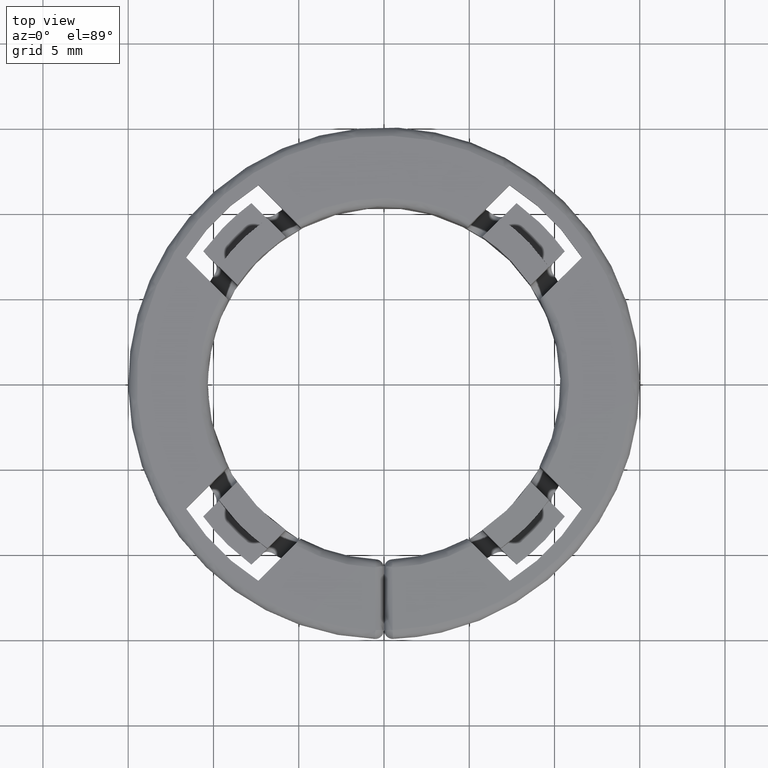
[diagram: clean part render]
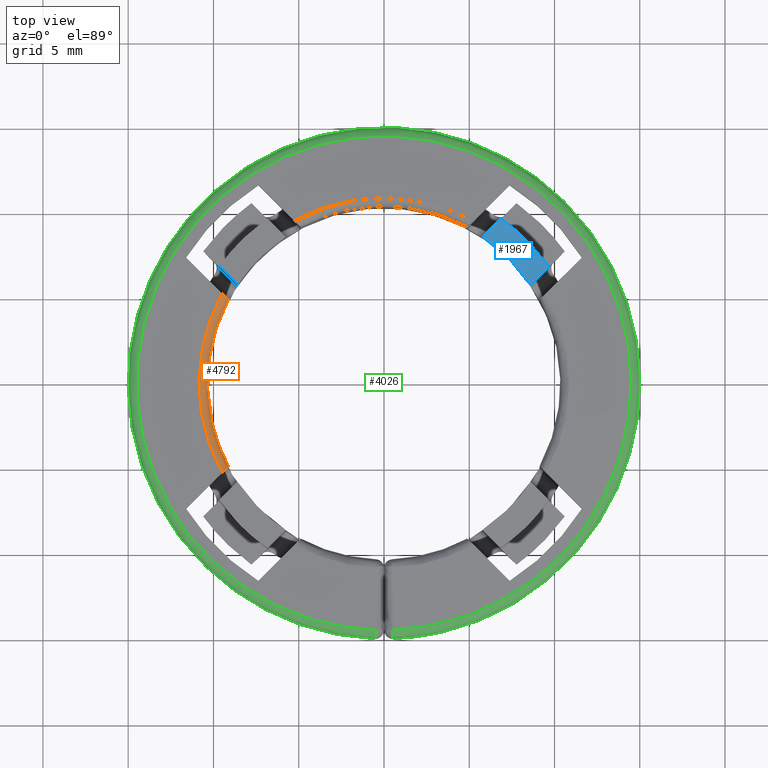
[diagram: same view with three faces highlighted in distinct colors, each labeled with its STEP entity id]
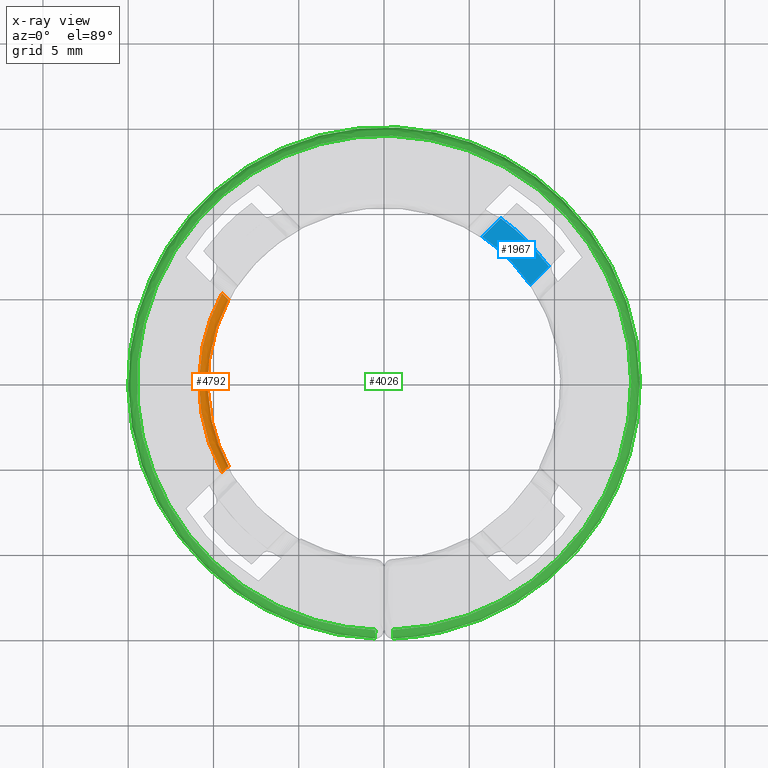
[diagram: x-ray of the same camera — body ghosted, the three highlighted faces saturated]
A machine part, top view with three faces highlighted in distinct colors.
The next image is the same camera in x-ray (body ghosted, the three faces saturated) — at least one of them is partly hidden behind the body in this view.
Their STEP definitions:

[orange] entity #4792 — the highlighted face is a freeform B-spline surface patch.
#1041=CARTESIAN_POINT('',(-9.125693977226019,4.883053290106700,5.999999999999890));
#1042=VERTEX_POINT('',#1041);
#1070=CARTESIAN_POINT('',(-9.494328549170220,5.251687862050890,6.500000000000000));
#1071=VERTEX_POINT('',#1070);
#1077=CARTESIAN_POINT('',(-9.125693977226028,4.883053290106715,5.999999999999887));
#1078=CARTESIAN_POINT('',(-9.125693977226026,4.883053290106715,6.033752963153897));
#1079=CARTESIAN_POINT('',(-9.128193237254189,4.885552550134879,6.066899596129286));
#1080=CARTESIAN_POINT('',(-9.137961227634385,4.895320540515074,6.132035770076508));
#1081=CARTESIAN_POINT('',(-9.145364351381973,4.902723664262662,6.164374184655222));
#1082=CARTESIAN_POINT('',(-9.164478044468808,4.921837357349496,6.225500382039145));
#1083=CARTESIAN_POINT('',(-9.176141815776122,4.933501128656807,6.254413710633630));
#1084=CARTESIAN_POINT('',(-9.196749602473103,4.954108915353785,6.295346835030607));
#1085=CARTESIAN_POINT('',(-9.204178845475632,4.961538158356318,6.308632579940622));
#1086=CARTESIAN_POINT('',(-9.219783511263955,4.977142824144643,6.333849574005575));
#1087=CARTESIAN_POINT('',(-9.227982877346719,4.985342190227405,6.345840490278778));
#1088=CARTESIAN_POINT('',(-9.253734842209372,5.011094155090057,6.380018412267149));
#1089=CARTESIAN_POINT('',(-9.272527133332154,5.029886446212839,6.400511723870603));
#1090=CARTESIAN_POINT('',(-9.312824353397463,5.070183666278146,6.436269984214948));
#1091=CARTESIAN_POINT('',(-9.333892925819102,5.091252238699786,6.451185906686304));
#1092=CARTESIAN_POINT('',(-9.377784206318259,5.135143519198939,6.475367663814558));
#1093=CARTESIAN_POINT('',(-9.400853066634964,5.158212379515645,6.484673399277100));
#1094=CARTESIAN_POINT('',(-9.447310462598381,5.204669775479057,6.496941569849708));
#1095=CARTESIAN_POINT('',(-9.470726407002953,5.228085719883628,6.499999999999899));
#1096=CARTESIAN_POINT('',(-9.494328549170220,5.251687862050890,6.500000000000000));
#1097=B_SPLINE_CURVE_WITH_KNOTS('',3,(#1077,#1078,#1079,#1080,#1081,#1082,#1083,#1084,#1085,#1086,#1087,#1088,#1089,#1090,#1091,#1092,#1093,#1094,#1095,#1096),.UNSPECIFIED.,.F.,.U.,(4,2,2,2,2,2,2,2,2,4),(0.0,0.125000000000003,0.250000000000005,0.375000000000007,0.437500000000008,0.500000000000009,0.625000000000006,0.750000000000004,0.875000000000002,1.0),.UNSPECIFIED.);
#1098=EDGE_CURVE('',#1042,#1071,#1097,.T.);
#1282=CARTESIAN_POINT('',(-9.125693977225998,-4.883053290106460,5.999999999999890));
#1283=VERTEX_POINT('',#1282);
#1289=CARTESIAN_POINT('',(-9.494328549170199,-5.251687862050639,6.500000000000000));
#1290=VERTEX_POINT('',#1289);
#1291=CARTESIAN_POINT('',(-9.125693977226010,-4.883053290106461,5.999999999999888));
#1292=CARTESIAN_POINT('',(-9.125693977226010,-4.883053290106460,6.033752963153897));
#1293=CARTESIAN_POINT('',(-9.128193237254171,-4.885552550134625,6.066899596129288));
#1294=CARTESIAN_POINT('',(-9.137961227634373,-4.895320540514822,6.132035770076510));
#1295=CARTESIAN_POINT('',(-9.145364351381955,-4.902723664262405,6.164374184655223));
#1296=CARTESIAN_POINT('',(-9.164478044468794,-4.921837357349242,6.225500382039148));
#1297=CARTESIAN_POINT('',(-9.176141815776107,-4.933501128656553,6.254413710633630));
#1298=CARTESIAN_POINT('',(-9.196749602473087,-4.954108915353532,6.295346835030606));
#1299=CARTESIAN_POINT('',(-9.204178845475619,-4.961538158356064,6.308632579940629));
#1300=CARTESIAN_POINT('',(-9.219783511263941,-4.977142824144386,6.333849574005576));
#1301=CARTESIAN_POINT('',(-9.227982877346703,-4.985342190227149,6.345840490278777));
#1302=CARTESIAN_POINT('',(-9.253734842209363,-5.011094155089803,6.380018412267149));
#1303=CARTESIAN_POINT('',(-9.272527133332140,-5.029886446212583,6.400511723870606));
#1304=CARTESIAN_POINT('',(-9.312824353397447,-5.070183666277888,6.436269984214948));
#1305=CARTESIAN_POINT('',(-9.333892925819090,-5.091252238699529,6.451185906686305));
#1306=CARTESIAN_POINT('',(-9.377784206318243,-5.135143519198683,6.475367663814561));
#1307=CARTESIAN_POINT('',(-9.400853066634950,-5.158212379515390,6.484673399277101));
#1308=CARTESIAN_POINT('',(-9.447310462598365,-5.204669775478799,6.496941569849707));
#1309=CARTESIAN_POINT('',(-9.470726407002934,-5.228085719883367,6.499999999999897));
#1310=CARTESIAN_POINT('',(-9.494328549170199,-5.251687862050639,6.500000000000000));
#1311=B_SPLINE_CURVE_WITH_KNOTS('',3,(#1291,#1292,#1293,#1294,#1295,#1296,#1297,#1298,#1299,#1300,#1301,#1302,#1303,#1304,#1305,#1306,#1307,#1308,#1309,#1310),.UNSPECIFIED.,.F.,.U.,(4,2,2,2,2,2,2,2,2,4),(0.0,0.125000000000005,0.250000000000010,0.375000000000015,0.437500000000015,0.500000000000016,0.625000000000012,0.750000000000008,0.875000000000004,1.0),.UNSPECIFIED.);
#1312=EDGE_CURVE('',#1283,#1290,#1311,.T.);
#4645=CARTESIAN_POINT('',(-9.125693977226030,4.883053290106708,5.999999999999890));
#4646=CARTESIAN_POINT('',(-11.738559310375047,1.195571E-013,5.999999999999890));
#4647=CARTESIAN_POINT('',(-9.125693977226010,-4.883053290106460,5.999999999999890));
#4655=(BOUNDED_CURVE()B_SPLINE_CURVE(2,(#4645,#4646,#4647),.UNSPECIFIED.,.F.,.U.)CURVE()GEOMETRIC_REPRESENTATION_ITEM()QUASI_UNIFORM_CURVE()RATIONAL_B_SPLINE_CURVE((1.0,0.881709563017007,1.0))REPRESENTATION_ITEM(''));
#4656=EDGE_CURVE('',#1042,#1283,#4655,.T.);
#4751=CARTESIAN_POINT('',(-9.494328549170199,-5.251687862050639,6.500000000000000));
#4752=CARTESIAN_POINT('',(-12.399244389987818,1.117509E-013,6.499999999999901));
#4753=CARTESIAN_POINT('',(-9.494328549170220,5.251687862050890,6.500000000000000));
#4761=(BOUNDED_CURVE()B_SPLINE_CURVE(2,(#4751,#4752,#4753),.UNSPECIFIED.,.F.,.U.)CURVE()GEOMETRIC_REPRESENTATION_ITEM()QUASI_UNIFORM_CURVE()RATIONAL_B_SPLINE_CURVE((1.0,0.875053322504168,1.0))REPRESENTATION_ITEM(''));
#4762=EDGE_CURVE('',#1290,#1071,#4761,.T.);
#4769=CARTESIAN_POINT('',(-8.806788480380053,-5.439500611160658,5.965137880029097));
#4770=CARTESIAN_POINT('',(-12.166488523494532,0.000000135750518,5.965137880029098));
#4771=CARTESIAN_POINT('',(-8.806788358995110,5.439500807688451,5.965137880029100));
#4772=CARTESIAN_POINT('',(-8.772682988888937,-5.418435401950378,6.538667874702768));
#4773=CARTESIAN_POINT('',(-12.119372134615741,0.000000135224807,6.538667874702766));
#4774=CARTESIAN_POINT('',(-8.772682867974071,5.418435597717092,6.538667874702767));
#4775=CARTESIAN_POINT('',(-9.260653561565560,-5.719829744986583,6.498796173375594));
#4776=CARTESIAN_POINT('',(-12.793498507186118,0.000000142746526,6.498796173375594));
#4777=CARTESIAN_POINT('',(-9.260653433924945,5.719829951642586,6.498796173375596));
#4785=(BOUNDED_SURFACE()B_SPLINE_SURFACE(2,2,((#4769,#4772,#4775),(#4770,#4773,#4776),(#4771,#4774,#4777)),.UNSPECIFIED.,.F.,.F.,.U.)B_SPLINE_SURFACE_WITH_KNOTS((3,3),(3,3),(0.0,12.361871346546680),(0.0,0.911185229196615),.UNSPECIFIED.)GEOMETRIC_REPRESENTATION_ITEM()RATIONAL_B_SPLINE_SURFACE(((0.848582462221457,0.558409499248120,0.853309072413749),(0.721971757984049,0.475093353675680,0.725993145676768),(0.848582467598067,0.558409502786198,0.853309077820308)))REPRESENTATION_ITEM('')SURFACE());
#4786=ORIENTED_EDGE('',*,*,#4656,.F.);
#4787=ORIENTED_EDGE('',*,*,#1098,.T.);
#4788=ORIENTED_EDGE('',*,*,#4762,.F.);
#4789=ORIENTED_EDGE('',*,*,#1312,.F.);
#4790=EDGE_LOOP('',(#4786,#4787,#4788,#4789));
#4791=FACE_OUTER_BOUND('',#4790,.T.);
#4792=ADVANCED_FACE('',(#4791),#4785,.T.);

[blue] entity #1967 — the highlighted face is a freeform B-spline surface patch.
#1916=CARTESIAN_POINT('',(5.571257014669153,9.868369205966793,4.999999999999901));
#1917=CARTESIAN_POINT('',(9.868369310755744,9.868369205966793,4.999999999999901));
#1918=CARTESIAN_POINT('',(5.571257014669153,5.571256909880258,4.999999999999901));
#1919=CARTESIAN_POINT('',(9.868369310755744,5.571256909880258,4.999999999999901));
#1920=B_SPLINE_SURFACE_WITH_KNOTS('',1,1,((#1916,#1918),(#1917,#1919)),.UNSPECIFIED.,.F.,.F.,.U.,(2,2),(2,2),(0.0,4.297112296086591),(0.0,4.297112296086535),.UNSPECIFIED.);
#1921=CARTESIAN_POINT('',(9.673223793629429,6.844796668883500,4.999999999999901));
#1922=VERTEX_POINT('',#1921);
#1923=CARTESIAN_POINT('',(8.594829831190118,5.766402706444190,4.999999999999890));
#1924=VERTEX_POINT('',#1923);
#1925=CARTESIAN_POINT('',(9.673223793629429,6.844796668883500,4.999999999999901));
#1926=CARTESIAN_POINT('',(8.594829831190118,5.766402706444190,4.999999999999890));
#1927=QUASI_UNIFORM_CURVE('',1,(#1925,#1926),.UNSPECIFIED.,.F.,.U.);
#1928=EDGE_CURVE('',#1922,#1924,#1927,.T.);
#1929=ORIENTED_EDGE('',*,*,#1928,.F.);
#1930=CARTESIAN_POINT('',(6.844796668883281,9.673223793629589,4.999999999999901));
#1931=VERTEX_POINT('',#1930);
#1932=CARTESIAN_POINT('',(9.673223793629431,6.844796668883495,4.999999999999901));
#1933=CARTESIAN_POINT('',(8.501169999073428,8.501169999073614,4.999999999999901));
#1934=CARTESIAN_POINT('',(6.844796668883275,9.673223793629585,4.999999999999901));
#1942=(BOUNDED_CURVE()B_SPLINE_CURVE(2,(#1932,#1933,#1934),.UNSPECIFIED.,.F.,.U.)CURVE()GEOMETRIC_REPRESENTATION_ITEM()QUASI_UNIFORM_CURVE()RATIONAL_B_SPLINE_CURVE((1.0,0.985654369689547,1.0))REPRESENTATION_ITEM(''));
#1943=EDGE_CURVE('',#1922,#1931,#1942,.T.);
#1944=ORIENTED_EDGE('',*,*,#1943,.T.);
#1945=CARTESIAN_POINT('',(5.766402706443980,8.594829831190220,4.999999999999890));
#1946=VERTEX_POINT('',#1945);
#1947=CARTESIAN_POINT('',(5.766402706443980,8.594829831190220,4.999999999999890));
#1948=CARTESIAN_POINT('',(6.844796668883281,9.673223793629589,4.999999999999901));
#1949=QUASI_UNIFORM_CURVE('',1,(#1947,#1948),.UNSPECIFIED.,.F.,.U.);
#1950=EDGE_CURVE('',#1946,#1931,#1949,.T.);
#1951=ORIENTED_EDGE('',*,*,#1950,.F.);
#1952=CARTESIAN_POINT('',(8.594829831190118,5.766402706444190,4.999999999999890));
#1953=CARTESIAN_POINT('',(7.459143894459028,7.459143894459201,4.999999999999890));
#1954=CARTESIAN_POINT('',(5.766402706443980,8.594829831190220,4.999999999999890));
#1962=(BOUNDED_CURVE()B_SPLINE_CURVE(2,(#1952,#1953,#1954),.UNSPECIFIED.,.F.,.U.)CURVE()GEOMETRIC_REPRESENTATION_ITEM()QUASI_UNIFORM_CURVE()RATIONAL_B_SPLINE_CURVE((1.0,0.981152165561156,1.0))REPRESENTATION_ITEM(''));
#1963=EDGE_CURVE('',#1924,#1946,#1962,.T.);
#1964=ORIENTED_EDGE('',*,*,#1963,.F.);
#1965=EDGE_LOOP('',(#1929,#1944,#1951,#1964));
#1966=FACE_OUTER_BOUND('',#1965,.T.);
#1967=ADVANCED_FACE('',(#1966),#1920,.F.);

[green] entity #4026 — the highlighted face is a freeform B-spline surface patch.
#3387=CARTESIAN_POINT('',(0.527586206896595,-14.990718888508820,5.999999999999901));
#3388=VERTEX_POINT('',#3387);
#3462=CARTESIAN_POINT('',(0.510000000000042,-14.491028258891861,6.499999999999900));
#3463=VERTEX_POINT('',#3462);
#3464=CARTESIAN_POINT('',(0.510000000000042,-14.491028258891861,6.499999999999900));
#3465=CARTESIAN_POINT('',(0.527586206896595,-14.990718888508818,6.499999999999900));
#3466=CARTESIAN_POINT('',(0.527586206896595,-14.990718888508820,5.999999999999901));
#3474=(BOUNDED_CURVE()B_SPLINE_CURVE(2,(#3464,#3465,#3466),.UNSPECIFIED.,.F.,.U.)CURVE()GEOMETRIC_REPRESENTATION_ITEM()QUASI_UNIFORM_CURVE()RATIONAL_B_SPLINE_CURVE((1.0,0.707106781186548,1.0))REPRESENTATION_ITEM(''));
#3475=EDGE_CURVE('',#3463,#3388,#3474,.T.);
#3557=CARTESIAN_POINT('',(-0.509999999999958,-14.491028258891861,6.499999999999900));
#3558=VERTEX_POINT('',#3557);
#3604=CARTESIAN_POINT('',(-0.527586206896508,-14.990718888508820,5.999999999999901));
#3605=VERTEX_POINT('',#3604);
#3606=CARTESIAN_POINT('',(-0.527586206896508,-14.990718888508820,5.999999999999901));
#3607=CARTESIAN_POINT('',(-0.527586206896508,-14.990718888508818,6.499999999999900));
#3608=CARTESIAN_POINT('',(-0.509999999999958,-14.491028258891861,6.499999999999900));
#3616=(BOUNDED_CURVE()B_SPLINE_CURVE(2,(#3606,#3607,#3608),.UNSPECIFIED.,.F.,.U.)CURVE()GEOMETRIC_REPRESENTATION_ITEM()QUASI_UNIFORM_CURVE()RATIONAL_B_SPLINE_CURVE((1.0,0.707106781186548,1.0))REPRESENTATION_ITEM(''));
#3617=EDGE_CURVE('',#3605,#3558,#3616,.T.);
#3949=CARTESIAN_POINT('',(-0.457921533959296,-14.458074380021106,6.498796146098504));
#3950=CARTESIAN_POINT('',(-14.688904448564234,-14.007345371806196,6.498796146098508));
#3951=CARTESIAN_POINT('',(-14.463511701393964,0.228989460732236,6.498796146098504));
#3952=CARTESIAN_POINT('',(-14.238118954223694,14.465324293270671,6.498796146098508));
#3953=CARTESIAN_POINT('',(0.0,14.465324293270669,6.498796146098504));
#3954=CARTESIAN_POINT('',(14.238118954223694,14.465324293270671,6.498796146098508));
#3955=CARTESIAN_POINT('',(14.463511701393964,0.228989460732236,6.498796146098504));
#3956=CARTESIAN_POINT('',(14.688904448564234,-14.007345371806196,6.498796146098508));
#3957=CARTESIAN_POINT('',(0.457921533959296,-14.458074380021106,6.498796146098504));
#3958=CARTESIAN_POINT('',(-0.476077974164257,-15.031332336881187,6.538668331784733));
#3959=CARTESIAN_POINT('',(-15.271314742727100,-14.562732069772766,6.538668331784728));
#3960=CARTESIAN_POINT('',(-15.036985246281814,0.238068818532694,6.538668331784733));
#3961=CARTESIAN_POINT('',(-14.802655749836511,15.038869706838154,6.538668331784728));
#3962=CARTESIAN_POINT('',(0.0,15.038869706838161,6.538668331784733));
#3963=CARTESIAN_POINT('',(14.802655749836511,15.038869706838154,6.538668331784728));
#3964=CARTESIAN_POINT('',(15.036985246281814,0.238068818532694,6.538668331784733));
#3965=CARTESIAN_POINT('',(15.271314742727100,-14.562732069772766,6.538668331784728));
#3966=CARTESIAN_POINT('',(0.476077974164257,-15.031332336881187,6.538668331784733));
#3967=CARTESIAN_POINT('',(-0.474808974107988,-14.991265871687572,5.965137861259023));
#3968=CARTESIAN_POINT('',(-15.230608597264608,-14.523914672583972,5.965137861259023));
#3969=CARTESIAN_POINT('',(-14.996903713089388,0.237434238987937,5.965137861259023));
#3970=CARTESIAN_POINT('',(-14.763198828914165,14.998783150559850,5.965137861259023));
#3971=CARTESIAN_POINT('',(0.0,14.998783150559849,5.965137861259023));
#3972=CARTESIAN_POINT('',(14.763198828914165,14.998783150559850,5.965137861259023));
#3973=CARTESIAN_POINT('',(14.996903713089388,0.237434238987937,5.965137861259023));
#3974=CARTESIAN_POINT('',(15.230608597264608,-14.523914672583972,5.965137861259023));
#3975=CARTESIAN_POINT('',(0.474808974107988,-14.991265871687572,5.965137861259023));
#3983=(BOUNDED_SURFACE()B_SPLINE_SURFACE(2,2,((#3949,#3958,#3967),(#3950,#3959,#3968),(#3951,#3960,#3969),(#3952,#3961,#3970),(#3953,#3962,#3971),(#3954,#3963,#3972),(#3955,#3964,#3973),(#3956,#3965,#3974),(#3957,#3966,#3975)),.UNSPECIFIED.,.F.,.F.,.U.)B_SPLINE_SURFACE_WITH_KNOTS((3,2,2,2,3),(3,3),(0.0,24.573068310168551,49.146136620337103,73.719204930505654,98.292273240674206),(0.0,0.911185726612408),.UNSPECIFIED.)GEOMETRIC_REPRESENTATION_ITEM()RATIONAL_B_SPLINE_SURFACE(((0.918900932656224,0.601332734826114,0.913810684454508),(0.654883821581444,0.428558798266315,0.651256095156680),(0.918900932656224,0.601332734826114,0.913810684454508),(0.654883821581444,0.428558798266315,0.651256095156680),(0.918900932656224,0.601332734826114,0.913810684454508),(0.654883821581444,0.428558798266315,0.651256095156680),(0.918900932656224,0.601332734826114,0.913810684454508),(0.654883821581444,0.428558798266315,0.651256095156680),(0.918900932656224,0.601332734826114,0.913810684454508)))REPRESENTATION_ITEM('')SURFACE());
#3984=CARTESIAN_POINT('',(0.510000000000042,-14.491028258891861,6.499999999999900));
#3985=CARTESIAN_POINT('',(14.748349240470098,-13.989921092243019,6.499999999999900));
#3986=CARTESIAN_POINT('',(14.497756891221670,0.255039453878514,6.499999999999900));
#3987=CARTESIAN_POINT('',(14.247164541973238,14.499999999999996,6.499999999999900));
#3988=CARTESIAN_POINT('',(0.0,14.500000000000000,6.499999999999900));
#3989=CARTESIAN_POINT('',(-14.247164541973323,14.499999999999996,6.499999999999900));
#3990=CARTESIAN_POINT('',(-14.497756891221670,0.255039453878429,6.499999999999900));
#3991=CARTESIAN_POINT('',(-14.748349240470013,-13.989921092243106,6.499999999999900));
#3992=CARTESIAN_POINT('',(-0.509999999999958,-14.491028258891861,6.499999999999900));
#4000=(BOUNDED_CURVE()B_SPLINE_CURVE(2,(#3984,#3985,#3986,#3987,#3988,#3989,#3990,#3991,#3992),.UNSPECIFIED.,.F.,.U.)B_SPLINE_CURVE_WITH_KNOTS((3,2,2,2,3),(0.0,0.250000000000000,0.500000000000000,0.750000000000000,1.0),.UNSPECIFIED.)CURVE()GEOMETRIC_REPRESENTATION_ITEM()RATIONAL_B_SPLINE_CURVE((1.0,0.713298299399938,1.0,0.713298299399938,1.0,0.713298299399938,1.0,0.713298299399938,1.0))REPRESENTATION_ITEM(''));
#4001=EDGE_CURVE('',#3463,#3558,#4000,.T.);
#4002=ORIENTED_EDGE('',*,*,#4001,.F.);
#4003=ORIENTED_EDGE('',*,*,#3475,.T.);
#4004=CARTESIAN_POINT('',(-0.527586206896508,-14.990718888508820,5.999999999999901));
#4005=CARTESIAN_POINT('',(-15.256913007382764,-14.472332164389423,5.999999999999900));
#4006=CARTESIAN_POINT('',(-14.997679542643111,0.263833917805264,5.999999999999901));
#4007=CARTESIAN_POINT('',(-14.738446077903452,14.999999999999998,5.999999999999900));
#4008=CARTESIAN_POINT('',(0.0,15.0,5.999999999999901));
#4009=CARTESIAN_POINT('',(14.738446077903340,14.999999999999998,5.999999999999900));
#4010=CARTESIAN_POINT('',(14.997679542643100,0.263833917805367,5.999999999999901));
#4011=CARTESIAN_POINT('',(15.256913007382861,-14.472332164389323,5.999999999999900));
#4012=CARTESIAN_POINT('',(0.527586206896595,-14.990718888508820,5.999999999999901));
#4020=(BOUNDED_CURVE()B_SPLINE_CURVE(2,(#4004,#4005,#4006,#4007,#4008,#4009,#4010,#4011,#4012),.UNSPECIFIED.,.F.,.U.)B_SPLINE_CURVE_WITH_KNOTS((3,2,2,2,3),(0.0,0.250000000000000,0.500000000000000,0.750000000000000,1.0),.UNSPECIFIED.)CURVE()GEOMETRIC_REPRESENTATION_ITEM()RATIONAL_B_SPLINE_CURVE((1.0,0.713298299399938,1.0,0.713298299399938,1.0,0.713298299399938,1.0,0.713298299399938,1.0))REPRESENTATION_ITEM(''));
#4021=EDGE_CURVE('',#3605,#3388,#4020,.T.);
#4022=ORIENTED_EDGE('',*,*,#4021,.F.);
#4023=ORIENTED_EDGE('',*,*,#3617,.T.);
#4024=EDGE_LOOP('',(#4002,#4003,#4022,#4023));
#4025=FACE_OUTER_BOUND('',#4024,.T.);
#4026=ADVANCED_FACE('',(#4025),#3983,.T.);